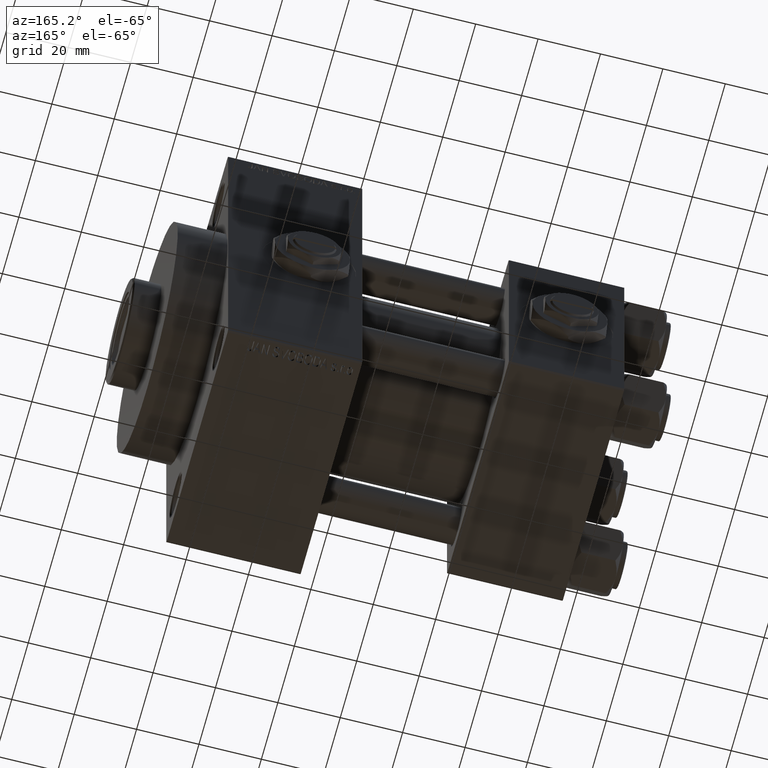
[diagram: clean part render]
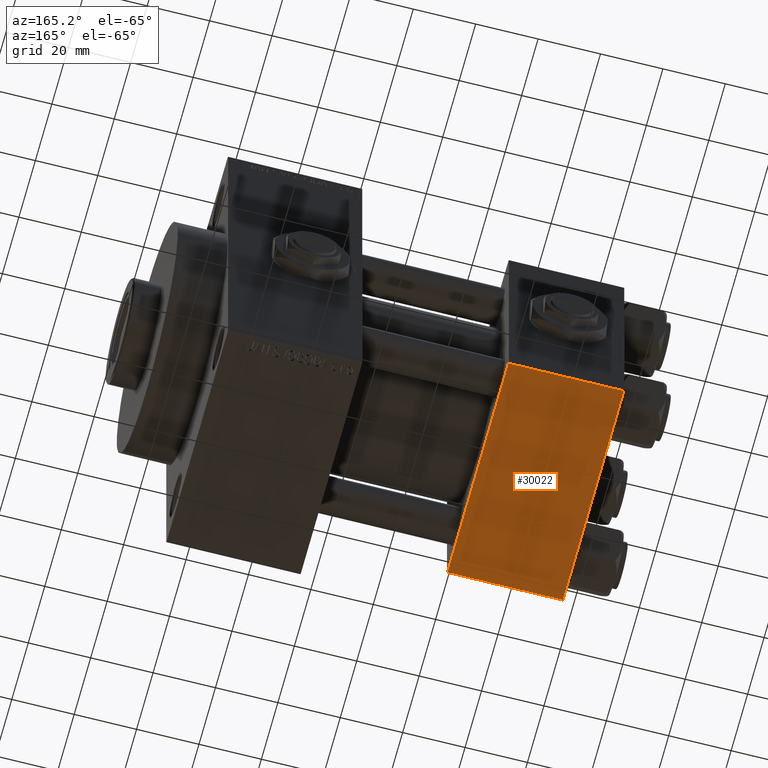
[diagram: same view with one face highlighted and labeled with its STEP entity id]
A machine part, auxiliary view. The second image highlights one B-rep face of the part: STEP entity #30022.
In plain terms, the highlighted planar face has unit normal (0, 0, -1).
Its self-contained STEP definition (entity closure, byte-faithful):
#72 = CARTESIAN_POINT ( 'NONE',  ( 0.000000000000000000, 37.49999999999999289, -37.50000000000000000 ) ) ;
#110 = EDGE_LOOP ( 'NONE', ( #37194, #16587, #42861, #32179 ) ) ;
#1026 = DIRECTION ( 'NONE',  ( 1.000000000000000000, 0.000000000000000000, 0.000000000000000000 ) ) ;
#1219 = DIRECTION ( 'NONE',  ( -1.000000000000000000, 0.000000000000000000, 0.000000000000000000 ) ) ;
#1706 = LINE ( 'NONE', #72, #22605 ) ;
#1865 = VERTEX_POINT ( 'NONE', #4845 ) ;
#4845 = CARTESIAN_POINT ( 'NONE',  ( 0.000000000000000000, 36.99999999999997868, -37.50000000000000000 ) ) ;
#5200 = LINE ( 'NONE', #20681, #46015 ) ;
#9124 = EDGE_CURVE ( 'NONE', #1865, #15153, #27464, .T. ) ;
#10452 = VERTEX_POINT ( 'NONE', #44561 ) ;
#12229 = EDGE_CURVE ( 'NONE', #1865, #41115, #1706, .T. ) ;
#12741 = LINE ( 'NONE', #30972, #18929 ) ;
#12976 = PLANE ( 'NONE',  #34228 ) ;
#15153 = VERTEX_POINT ( 'NONE', #30449 ) ;
#16191 = DIRECTION ( 'NONE',  ( 0.000000000000000000, -1.000000000000000000, -9.251858538542972814E-17 ) ) ;
#16587 = ORIENTED_EDGE ( 'NONE', *, *, #9124, .T. ) ;
#18929 = VECTOR ( 'NONE', #23731, 1000.000000000000000 ) ;
#20681 = CARTESIAN_POINT ( 'NONE',  ( 0.000000000000000000, -37.00000000000002132, -37.50000000000000711 ) ) ;
#21744 = EDGE_CURVE ( 'NONE', #15153, #10452, #12741, .T. ) ;
#22605 = VECTOR ( 'NONE', #16191, 1000.000000000000000 ) ;
#23725 = DIRECTION ( 'NONE',  ( 0.000000000000000000, 9.251858538542972814E-17, -1.000000000000000000 ) ) ;
#23731 = DIRECTION ( 'NONE',  ( 0.000000000000000000, -1.000000000000000000, -9.251858538542972814E-17 ) ) ;
#25638 = EDGE_CURVE ( 'NONE', #10452, #41115, #5200, .T. ) ;
#26226 = CARTESIAN_POINT ( 'NONE',  ( 0.000000000000000000, -37.00000000000002132, -37.50000000000000711 ) ) ;
#27464 = LINE ( 'NONE', #42654, #28979 ) ;
#28979 = VECTOR ( 'NONE', #1026, 1000.000000000000000 ) ;
#30022 = ADVANCED_FACE ( 'NONE', ( #47122 ), #12976, .T. ) ;
#30449 = CARTESIAN_POINT ( 'NONE',  ( 37.00000000000000000, 36.99999999999997868, -37.50000000000000000 ) ) ;
#30972 = CARTESIAN_POINT ( 'NONE',  ( 37.00000000000000000, 37.49999999999999289, -37.50000000000000000 ) ) ;
#32179 = ORIENTED_EDGE ( 'NONE', *, *, #25638, .T. ) ;
#34228 = AXIS2_PLACEMENT_3D ( 'NONE', #47366, #23725, #35442 ) ;
#35442 = DIRECTION ( 'NONE',  ( 0.000000000000000000, 1.000000000000000000, 9.251858538542972814E-17 ) ) ;
#37194 = ORIENTED_EDGE ( 'NONE', *, *, #12229, .F. ) ;
#41115 = VERTEX_POINT ( 'NONE', #26226 ) ;
#42654 = CARTESIAN_POINT ( 'NONE',  ( 37.00000000000000000, 36.99999999999997868, -37.50000000000000000 ) ) ;
#42861 = ORIENTED_EDGE ( 'NONE', *, *, #21744, .T. ) ;
#44561 = CARTESIAN_POINT ( 'NONE',  ( 37.00000000000000000, -37.00000000000002132, -37.50000000000000711 ) ) ;
#46015 = VECTOR ( 'NONE', #1219, 1000.000000000000000 ) ;
#47122 = FACE_OUTER_BOUND ( 'NONE', #110, .T. ) ;
#47366 = CARTESIAN_POINT ( 'NONE',  ( 37.00000000000000000, 37.49999999999999289, -37.50000000000000000 ) ) ;